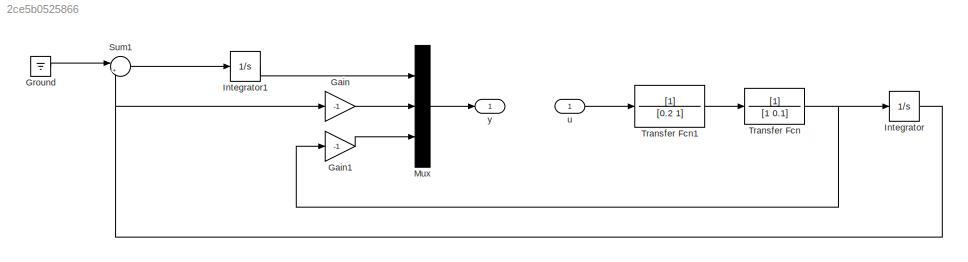
MODEL slx_2ce5b0525866
KIND model
CONFIG AbsTol = auto
CONFIG EnableMultiTasking = off
CONFIG FixedStep = 0.1
CONFIG MaxStep = auto
CONFIG MinStep = auto
CONFIG RelTol = 1e-3
CONFIG SampleTimeConstraint = Unconstrained
CONFIG Solver = ode4
CONFIG SolverName = ode4
CONFIG StartTime = 0.0
CONFIG StopTime = 50
BLOCK [Gain] Gain
  Gain = -1
  OutDataTypeStr = Inherit: Inherit via internal rule
  ParamDataTypeStr = Inherit: Inherit via internal rule
  SaturateOnIntegerOverflow = off
BLOCK [Gain] Gain1
  Gain = -1
  OutDataTypeStr = Inherit: Inherit via internal rule
  ParamDataTypeStr = Inherit: Inherit via internal rule
  SaturateOnIntegerOverflow = off
BLOCK [Ground] Ground
BLOCK [Integrator] Integrator
  Ports = [1, 1]
BLOCK [Integrator] Integrator1
  Ports = [1, 1]
BLOCK [Mux] Mux
  DisplayOption = bar
  Inputs = 3
  Ports = [3, 1]
BLOCK [Sum] Sum1
  IconShape = round
  InputSameDT = off
  Inputs = |+-
  OutDataTypeStr = Inherit: Inherit via internal rule
  Ports = [2, 1]
  SaturateOnIntegerOverflow = off
BLOCK [TransferFcn] Transfer Fcn
  Denominator = [1 0.1]
BLOCK [TransferFcn] Transfer Fcn1
  Denominator = [0.2 1]
BLOCK [Inport] u
  IconDisplay = Port number
BLOCK [Outport] y
  IconDisplay = Port number
LINE Gain1:1 -> Mux:3
LINE Gain:1 -> Mux:2
LINE Ground:1 -> Sum1:1
LINE Integrator1:1 -> Mux:1
NET Integrator:1 -> Gain:1, Sum1:2
LINE Mux:1 -> y:1
LINE Sum1:1 -> Integrator1:1
LINE Transfer Fcn1:1 -> Transfer Fcn:1
NET Transfer Fcn:1 -> Gain1:1, Integrator:1
LINE u:1 -> Transfer Fcn1:1
note: NET lines group one-source signal fan-out (src -> all destinations, sorted); 1:1 wires keep LINE
